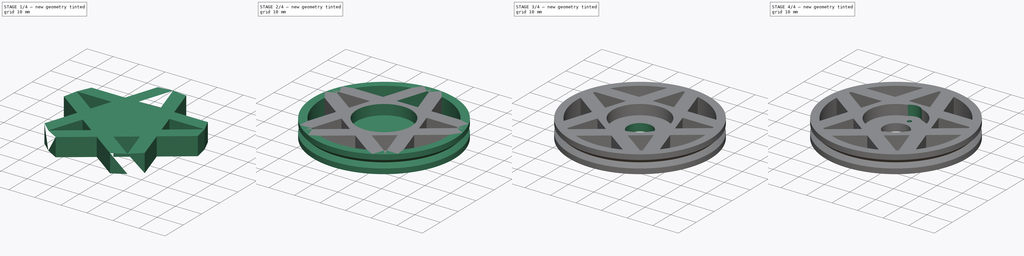
[diagram: build sequence overview — one tinted view per stage of 4, left to right]
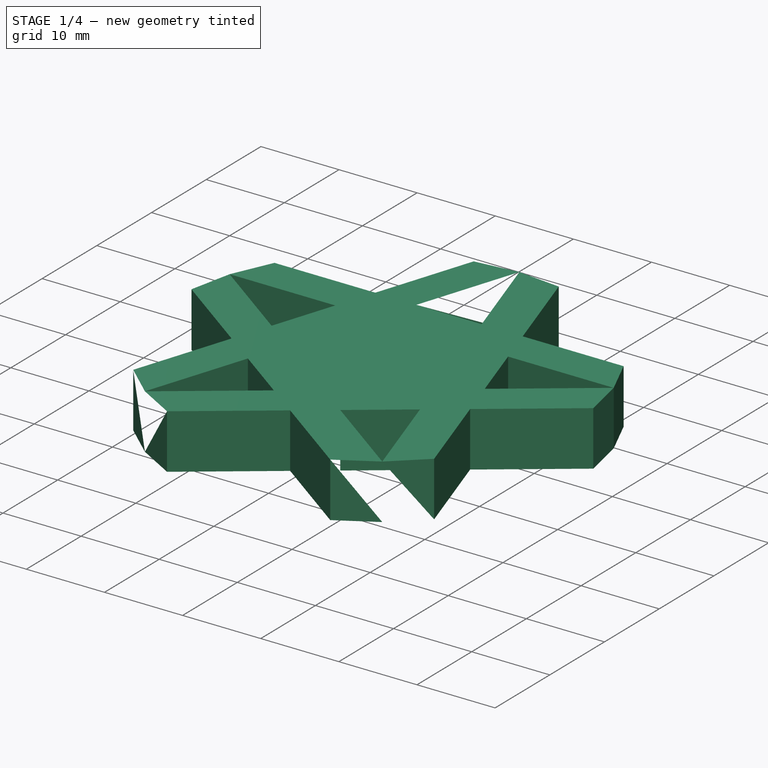
[diagram: stage 1 of 4 — iso view after this stage's code; geometry added in this stage tinted green]
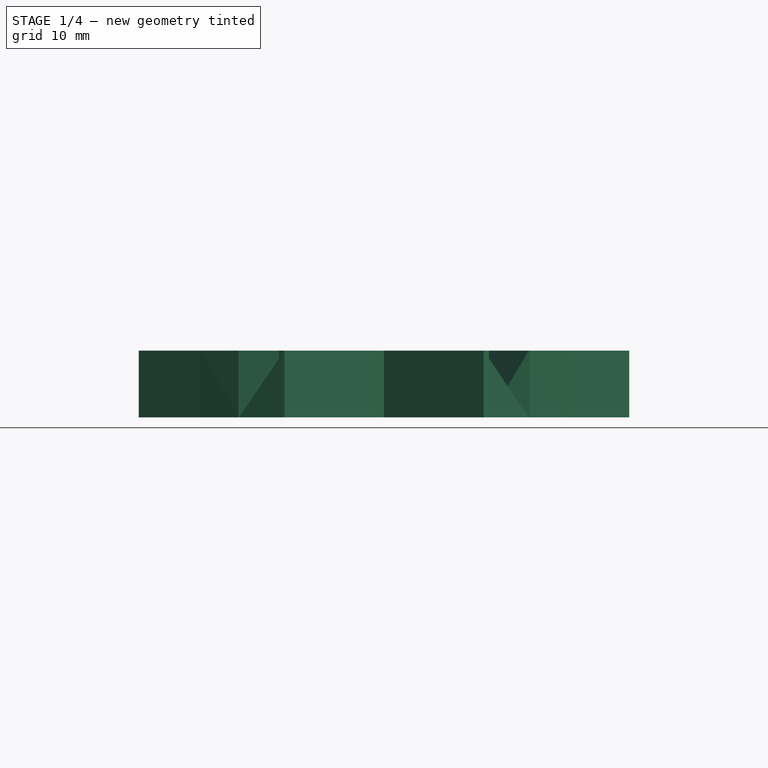
[diagram: stage 1 of 4 — front view after this stage's code; geometry added in this stage tinted green]
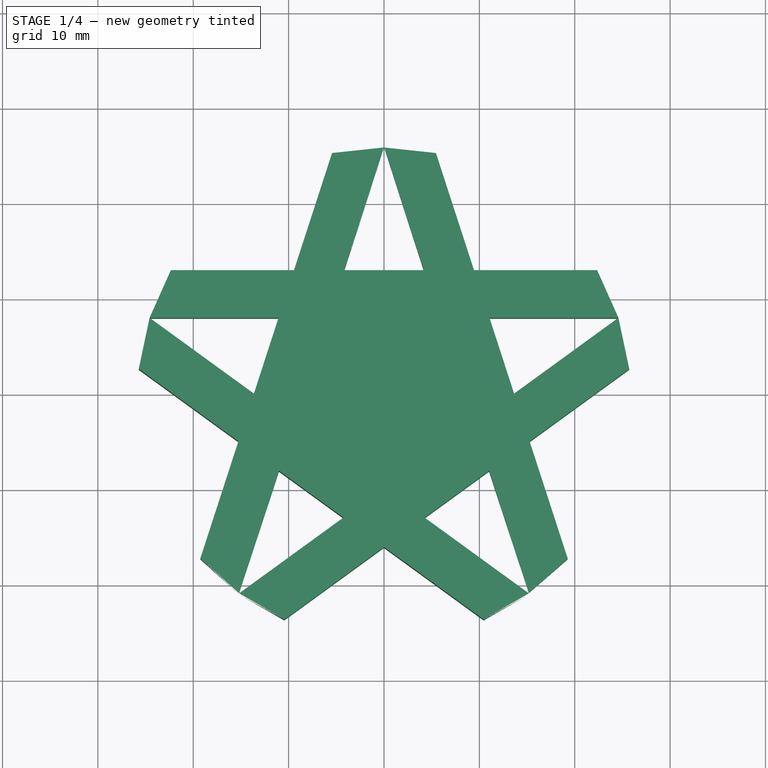
[diagram: stage 1 of 4 — top view after this stage's code; geometry added in this stage tinted green]
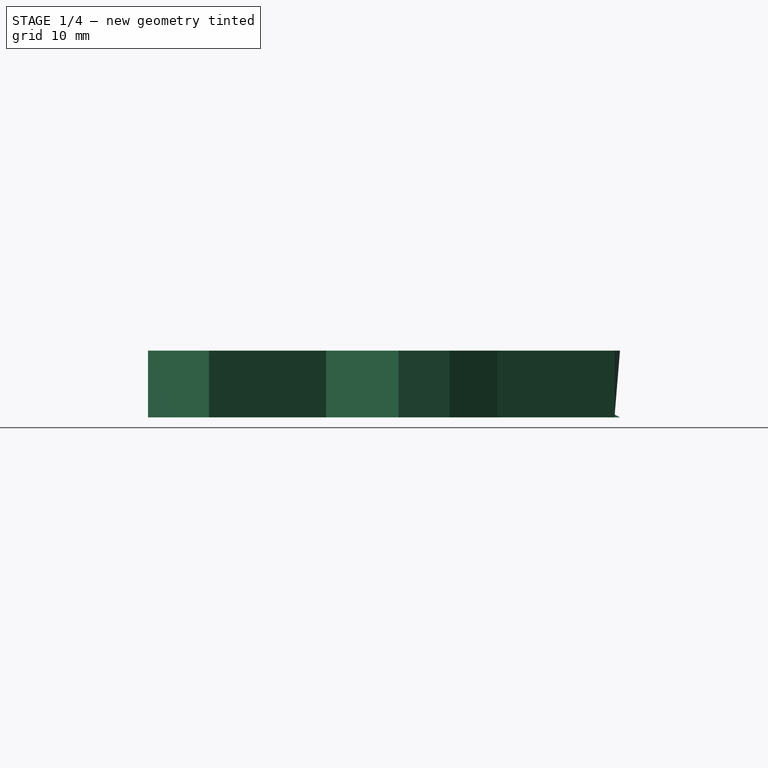
[diagram: stage 1 of 4 — right view after this stage's code; geometry added in this stage tinted green]
FCSTD DOCUMENT  (FreeCAD 0.14R3702 (Git))
Label: Renacuajo-wheel-pentacle
License: CC-BY 3.0
LicenseURL: http://creativecommons.org/licenses/by/3.0/
objects: Sketcher::SketchObject×7, Part::Feature×5, PartDesign::Pocket×4, PartDesign::Pad×2, Part::MultiFuse×2, PartDesign::PolarPattern×2, PartDesign::Revolution×1
note: 30 computed .brp shape members not serialized (recipe doc carries the construction recipe); baked Part::Feature solids carry a one-line shape summary decoded from their .brp

FEATURE [Sketcher::SketchObject] Sketch
  sketch-geometry (12):
    g0: Circle [constr] CenterX=0 CenterY=0 CenterZ=0 NormalX=0 NormalY=0 NormalZ=1 Radius=25.8483
    g1: LineSegment [constr] StartX=-9.38994 StartY=-3.05098 StartZ=0 EndX=-5.8033 EndY=7.98756 EndZ=0
    g2: LineSegment [constr] StartX=0 StartY=0 StartZ=0 EndX=0 EndY=-9.87317 EndZ=0
    g3: LineSegment [constr] StartX=0 StartY=0 StartZ=0 EndX=-9.38994 EndY=-3.05098 EndZ=0
    g4: LineSegment [constr] StartX=5.8033 StartY=7.98756 StartZ=0 EndX=9.38994 EndY=-3.05098 EndZ=0
    g5: LineSegment [constr] StartX=9.38994 StartY=-3.05098 StartZ=0 EndX=0 EndY=-9.87317 EndZ=0
    g6: LineSegment [constr] StartX=-5.8033 StartY=7.98756 StartZ=0 EndX=0 EndY=0 EndZ=0
    g7: LineSegment [constr] StartX=-24.5832 StartY=7.98756 StartZ=0 EndX=15.1932 EndY=-20.9117 EndZ=0
    g8: LineSegment StartX=-24.5832 StartY=7.98756 StartZ=0 EndX=24.5832 EndY=7.98756 EndZ=0
    g9: LineSegment StartX=-22.3485 StartY=12.9876 StartZ=0 EndX=22.3485 EndY=12.9876 EndZ=0
    g10: LineSegment StartX=-24.5832 StartY=7.98756 StartZ=0 EndX=-22.3485 EndY=12.9876 EndZ=0
    g11: LineSegment StartX=22.3485 StartY=12.9876 StartZ=0 EndX=24.5832 EndY=7.98756 EndZ=0
  constraints (32):
    c: Coincident(g0,g-1)
    c: PointOnObject(g2,g-2)
    c: Coincident(g2,g-1)
    c: Coincident(g3,g-1)
    c: Equal(g3,g2)
    c: Angle(g3,g2) = 1.25664
    c: Coincident(g4,g5)
    c: Symmetric(g1,g4,g-2)
    c: Symmetric(g4,g1,g-2)
    c: Coincident(g6,g1)
    c: Coincident(g6,g-1)
    c: Equal(g6,g3)
    c: Coincident(g1,g3)
    c: Coincident(g2,g5)
    c: Angle(g6,g3) = 1.25664
    c: PointOnObject(g7,g0)
    c: PointOnObject(g7,g0)
    c: PointOnObject(g1,g7)
    c: PointOnObject(g2,g7)
    c: Horizontal(g8)
    c: Coincident(g8,g7)
    c: PointOnObject(g8,g0)
    c: PointOnObject(g4,g8)
    c: Horizontal(g9)
    c: PointOnObject(g9,g0)
    c: PointOnObject(g9,g0)
    c: DistanceY(g9,g7) = -5
    c: Coincident(g10,g7)
    c: Coincident(g10,g9)
    c: Coincident(g11,g8)
    c: Coincident(g11,g9)
    c: Distance(g6) = 9.87317
FEATURE [PartDesign::Pad] Pad
  Length = 7
  Length2 = 100
  Midplane = true
  Sketch = -> Sketch
  Type = 0
FEATURE [Part::Feature] Pad006  label="Pad001"
  Placement = pos=(0,0,0) rot=(0,0,1;1.25664rad)
  shape: bbox 19.26 x 46.76 x 7 mm, 6 faces (baked)
FEATURE [Part::Feature] Pad006001  label="Pad002"
  Placement = pos=(0,0,0) rot=(0,0,1;2.51327rad)
  shape: bbox 40.91 x 31.63 x 7 mm, 6 faces (baked)
FEATURE [Part::Feature] Pad006001001  label="Pad003"
  Placement = pos=(0,0,0) rot=(0,0,1;3.76991rad)
  shape: bbox 40.91 x 31.63 x 7 mm, 6 faces (baked)
FEATURE [Part::Feature] Pad006001001001  label="Pad004"
  Placement = pos=(0,0,0) rot=(0,0,-1;1.25664rad)
  shape: bbox 19.26 x 46.76 x 7 mm, 6 faces (baked)
FEATURE [Part::MultiFuse] Fusion  label="star"
  Shapes = -> [Pad,Pad006,Pad006001,Pad006001001,Pad006001001001]
FEATURE [Sketcher::SketchObject] Sketch007  label="central-pentagon-sketch"
  sketch-geometry (8):
    g0: LineSegment StartX=-5.87785 StartY=8.09017 StartZ=0 EndX=5.87785 EndY=8.09017 EndZ=0
    g1: LineSegment [constr] StartX=-5.87785 StartY=8.09017 StartZ=0 EndX=0 EndY=0 EndZ=0
    g2: LineSegment [constr] StartX=-9.51057 StartY=-3.09017 StartZ=0 EndX=0 EndY=0 EndZ=0
    g3: LineSegment StartX=-5.87785 StartY=8.09017 StartZ=0 EndX=-9.51057 EndY=-3.09017 EndZ=0
    g4: LineSegment [constr] StartX=0 StartY=0 StartZ=0 EndX=0 EndY=-10 EndZ=0
    g5: LineSegment StartX=-9.51057 StartY=-3.09017 StartZ=0 EndX=0 EndY=-10 EndZ=0
    g6: LineSegment StartX=5.87785 StartY=8.09017 StartZ=0 EndX=9.51057 EndY=-3.09017 EndZ=0
    g7: LineSegment StartX=9.51057 StartY=-3.09017 StartZ=0 EndX=0 EndY=-10 EndZ=0
  constraints (20):
    c: Horizontal(g0)
    c: Symmetric(g0,g0,g-2)
    c: Coincident(g1,g-1)
    c: Coincident(g1,g0)
    c: Coincident(g-1,g2)
    c: Equal(g2,g1)
    c: Angle(g1,g2) = 1.25664
    c: Coincident(g3,g0)
    c: Coincident(g2,g3)
    c: Coincident(g4,g-1)
    c: Vertical(g4)
    c: Equal(g4,g2)
    c: Coincident(g5,g4)
    c: Coincident(g5,g2)
    c: Coincident(g6,g0)
    c: Coincident(g6,g7)
    c: Symmetric(g6,g2,g4)
    c: Coincident(g7,g4)
    c: Angle(g2,g4) = 1.25664
    c: Distance(g1) = 10
FEATURE [PartDesign::Pad] Pad006001001002  label="Central-pentagon"
  Length = 7
  Length2 = 100
  Midplane = true
  Sketch = -> Sketch007
  Type = 0
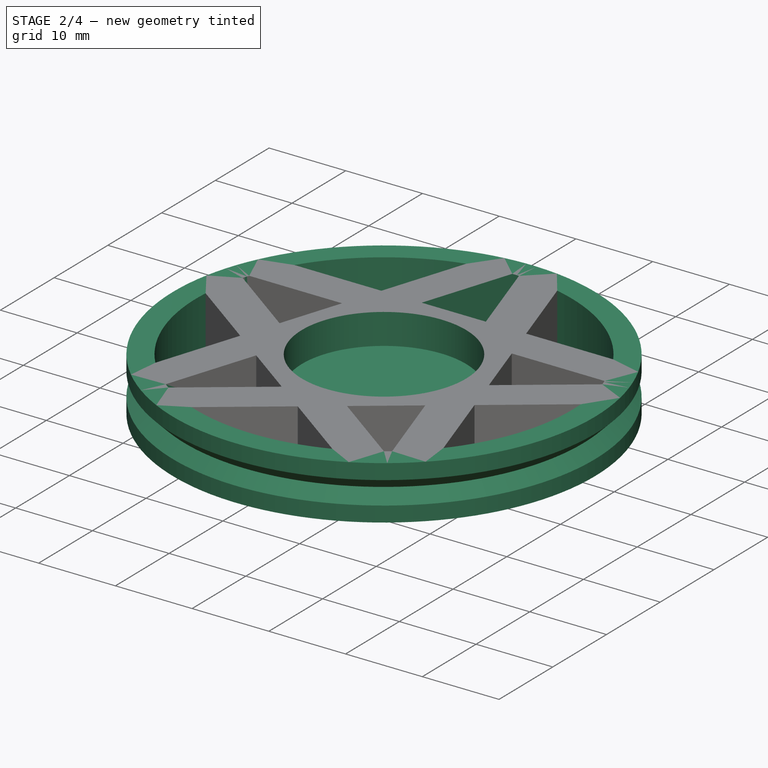
[diagram: stage 2 of 4 — iso view after this stage's code; geometry added in this stage tinted green]
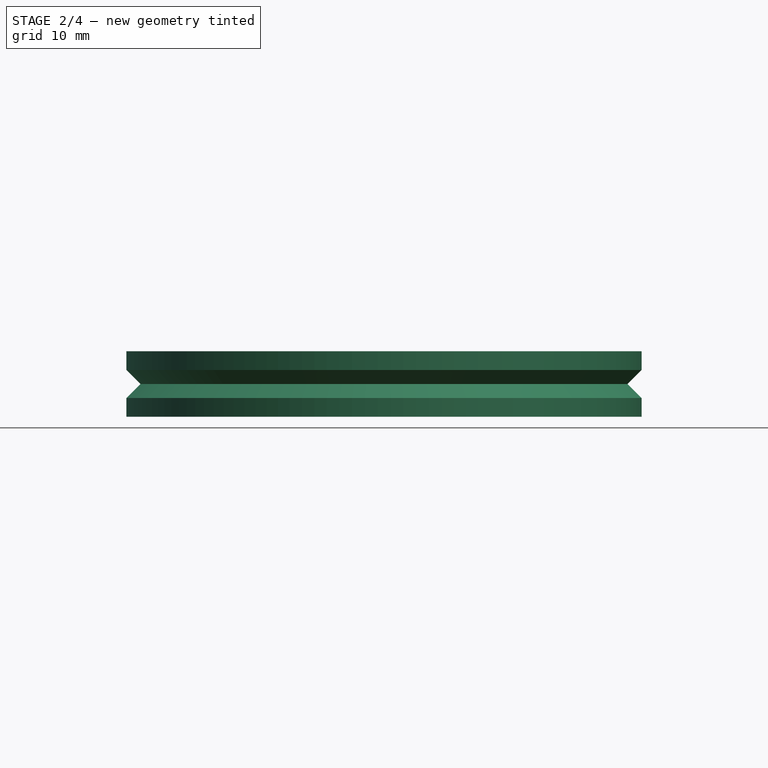
[diagram: stage 2 of 4 — front view after this stage's code; geometry added in this stage tinted green]
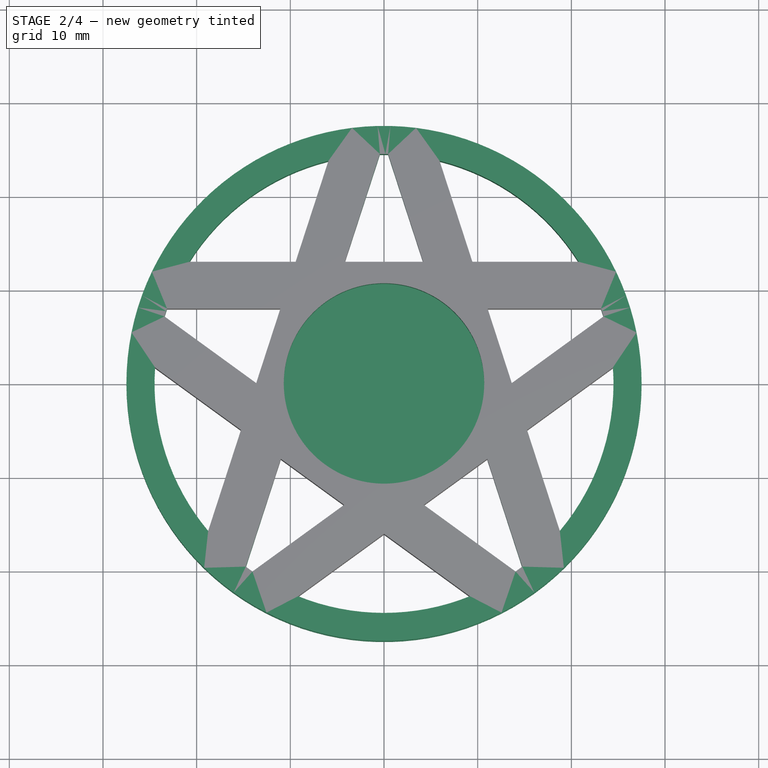
[diagram: stage 2 of 4 — top view after this stage's code; geometry added in this stage tinted green]
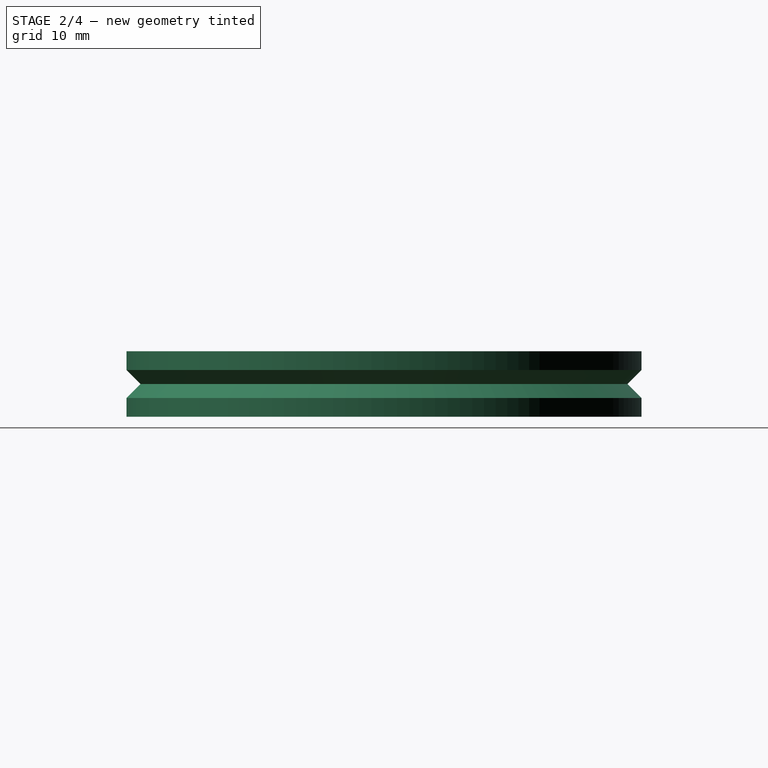
[diagram: stage 2 of 4 — right view after this stage's code; geometry added in this stage tinted green]
FEATURE [Sketcher::SketchObject] Sketch002  label="wheel-generic-sketch"
  Placement = pos=(0,0,0) rot=(1,0,0;1.5708rad)
  sketch-geometry (7):
    g0: LineSegment StartX=24.5 StartY=-3.5 StartZ=0 EndX=24.5 EndY=3.5 EndZ=0
    g1: LineSegment StartX=27.5 StartY=3.5 StartZ=0 EndX=27.5 EndY=1.5 EndZ=0
    g2: LineSegment StartX=27.5 StartY=1.5 StartZ=0 EndX=26 EndY=0 EndZ=0
    g3: LineSegment StartX=26 StartY=0 StartZ=0 EndX=27.5 EndY=-1.5 EndZ=0
    g4: LineSegment StartX=27.5 StartY=-1.5 StartZ=0 EndX=27.5 EndY=-3.5 EndZ=0
    g5: LineSegment StartX=24.5 StartY=3.5 StartZ=0 EndX=27.5 EndY=3.5 EndZ=0
    g6: LineSegment StartX=24.5 StartY=-3.5 StartZ=0 EndX=27.5 EndY=-3.5 EndZ=0
  constraints (20):
    c: Vertical(g0)
    c: Vertical(g1)
    c: Coincident(g1,g2)
    c: Coincident(g2,g3)
    c: Coincident(g3,g4)
    c: Vertical(g4)
    c: Symmetric(g0,g0,g-1)
    c: PointOnObject(g2,g-1)
    c: Symmetric(g3,g1,g-1)
    c: Angle(g2,g-1) = 2.35619
    c: DistanceY(g3,g1) = 3
    c: DistanceY(g0) = 7
    c: Coincident(g0,g5)
    c: Coincident(g6,g0)
    c: Coincident(g1,g5)
    c: Horizontal(g5)
    c: Coincident(g4,g6)
    c: Horizontal(g6)
    c: DistanceX(g5) = 3
    c: DistanceX(g-1,g1) = 27.5
FEATURE [PartDesign::Revolution] Revolution  label="rim"
  Angle = 360
  Axis = (0,0,1)
  Base = (0,0,0)
  Placement = pos=(0,0,0) rot=(1,0,0;1.5708rad)
  ReferenceAxis = -> Sketch002 [V_Axis]
  Reversed = true
  Sketch = -> Sketch002
FEATURE [Part::MultiFuse] Fusion001  label="wheel-1"
  Shapes = -> [Revolution,Fusion,Pad006001001002]
FEATURE [Sketcher::SketchObject] Sketch001  label="rounded-horn-sketch"
  Placement = pos=(0,0,3.5) rot=(0,0,1;0rad)
  Support = -> Fusion001 [Face5]
  sketch-geometry (1):
    g0: Circle CenterX=0 CenterY=0 CenterZ=0 NormalX=0 NormalY=0 NormalZ=1 Radius=10.7
  constraints (3):
    c: PointOnObject(g0,g-2)
    c: Radius(g0) = 10.7
    c: Coincident(g0,g-1)
FEATURE [PartDesign::Pocket] Pocket  label="rounded-horn"
  Length = 4
  Sketch = -> Sketch001
  Type = 0
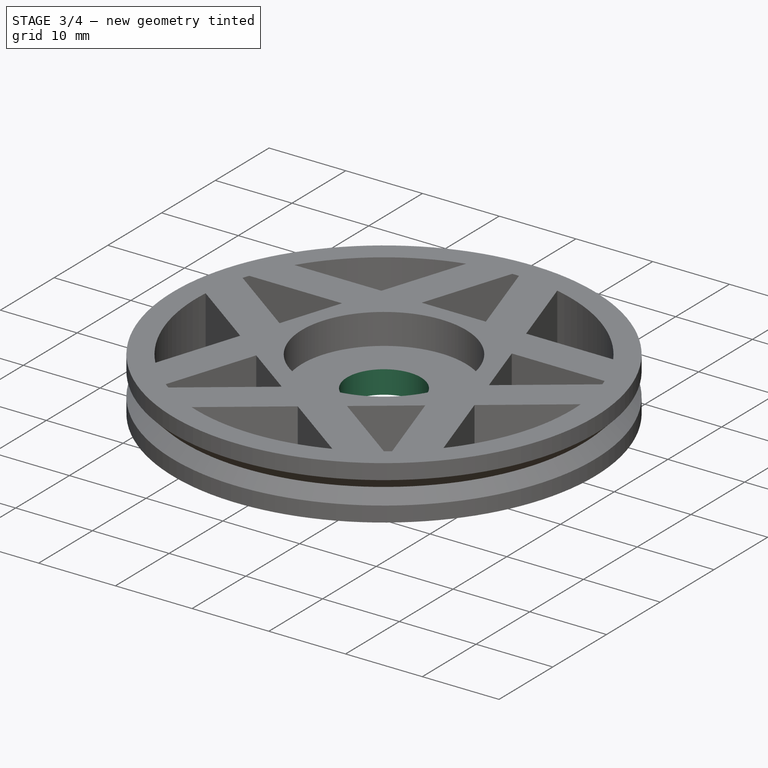
[diagram: stage 3 of 4 — iso view after this stage's code; geometry added in this stage tinted green]
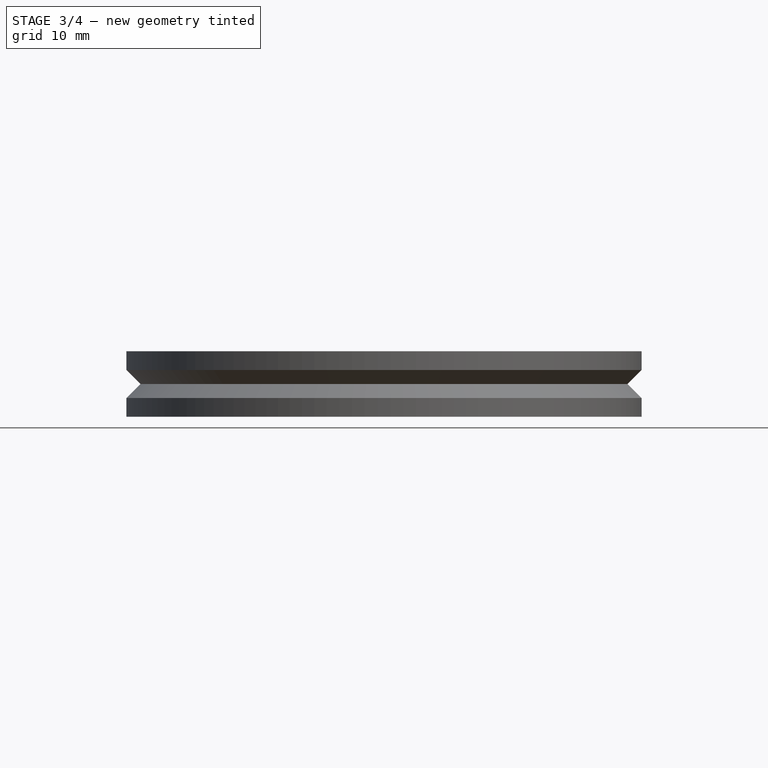
[diagram: stage 3 of 4 — front view after this stage's code; geometry added in this stage tinted green]
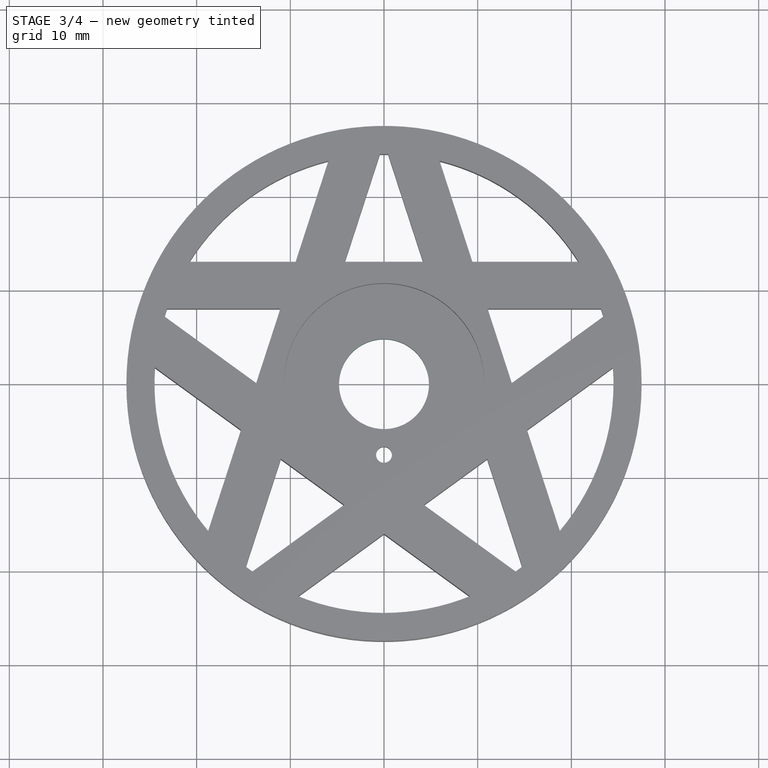
[diagram: stage 3 of 4 — top view after this stage's code; geometry added in this stage tinted green]
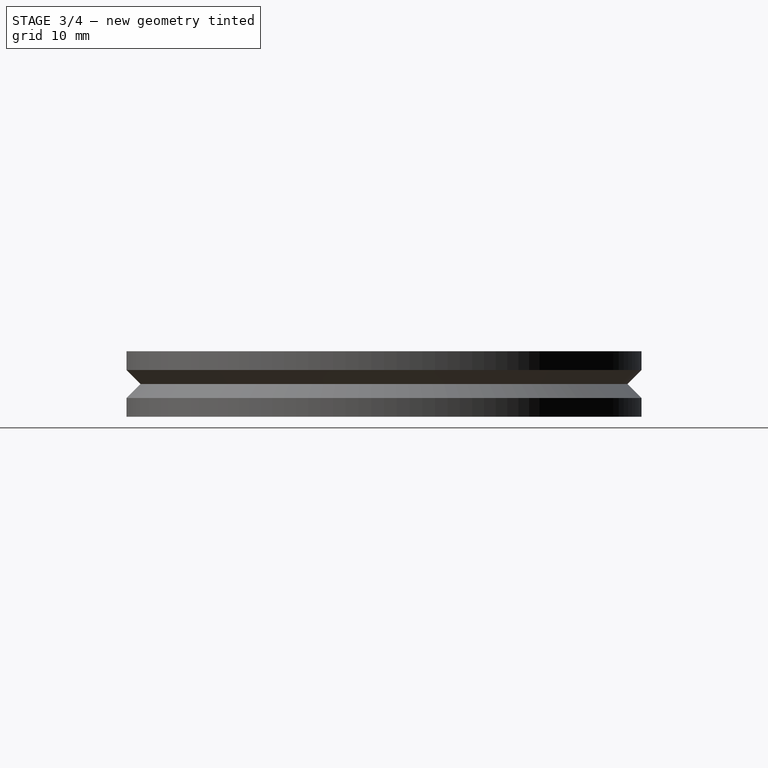
[diagram: stage 3 of 4 — right view after this stage's code; geometry added in this stage tinted green]
FEATURE [Sketcher::SketchObject] Sketch004  label="shaft-drill-sketch"
  Placement = pos=(0,0,-0.5) rot=(0,0,1;0rad)
  Support = -> Pocket [Face43]
  sketch-geometry (1):
    g0: Circle CenterX=0 CenterY=0 CenterZ=0 NormalX=0 NormalY=0 NormalZ=1 Radius=4.8
  constraints (2):
    c: Coincident(g0,g-1)
    c: Radius(g0) = 4.8
FEATURE [PartDesign::Pocket] Pocket001  label="shaft-drill"
  Length = 5
  Sketch = -> Sketch004
  Type = 1
FEATURE [Sketcher::SketchObject] Sketch005  label="horn-drill-master-sketch"
  Placement = pos=(0,0,-0.5) rot=(0,0,1;0rad)
  Support = -> Pocket001 [Face43]
  sketch-geometry (1):
    g0: Circle CenterX=0 CenterY=-7.55 CenterZ=0 NormalX=0 NormalY=0 NormalZ=1 Radius=0.85
  constraints (3):
    c: PointOnObject(g0,g-2)
    c: Radius(g0) = 0.85
    c: DistanceY(g-1,g0) = -7.55
FEATURE [PartDesign::Pocket] Pocket002  label="horn-drill-master"
  Length = 5
  Sketch = -> Sketch005
  Type = 1
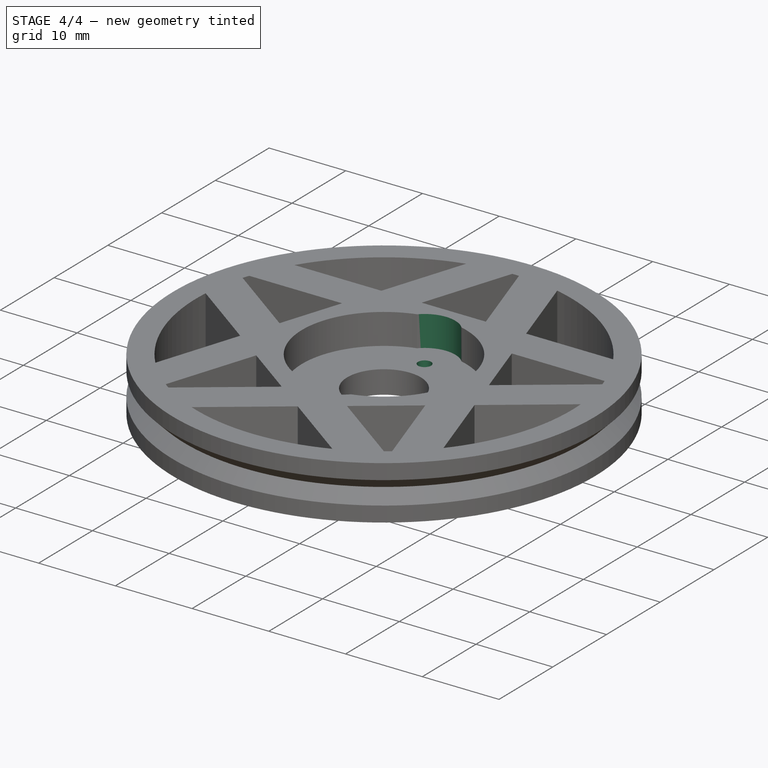
[diagram: stage 4 of 4 — iso view after this stage's code; geometry added in this stage tinted green]
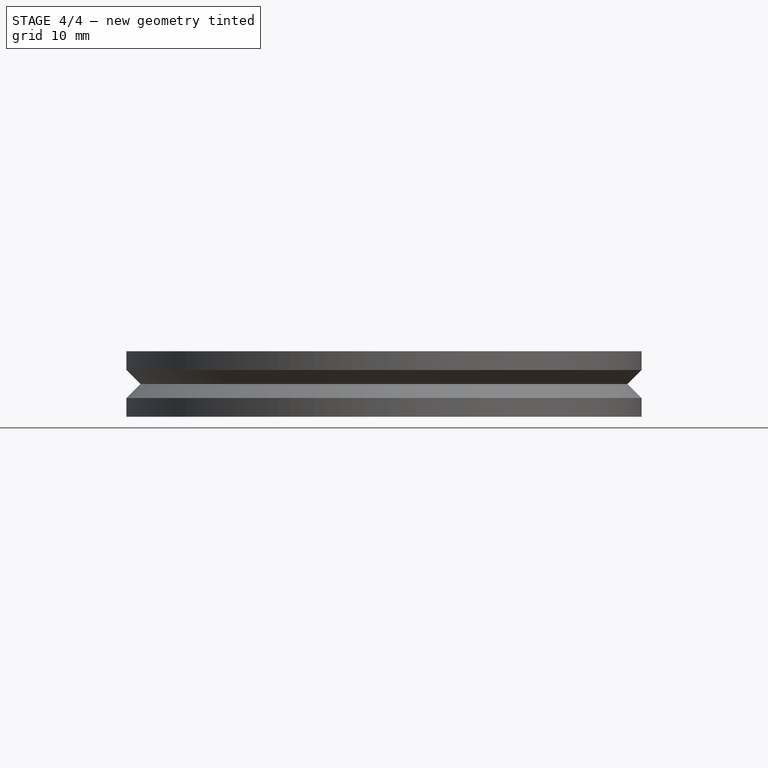
[diagram: stage 4 of 4 — front view after this stage's code; geometry added in this stage tinted green]
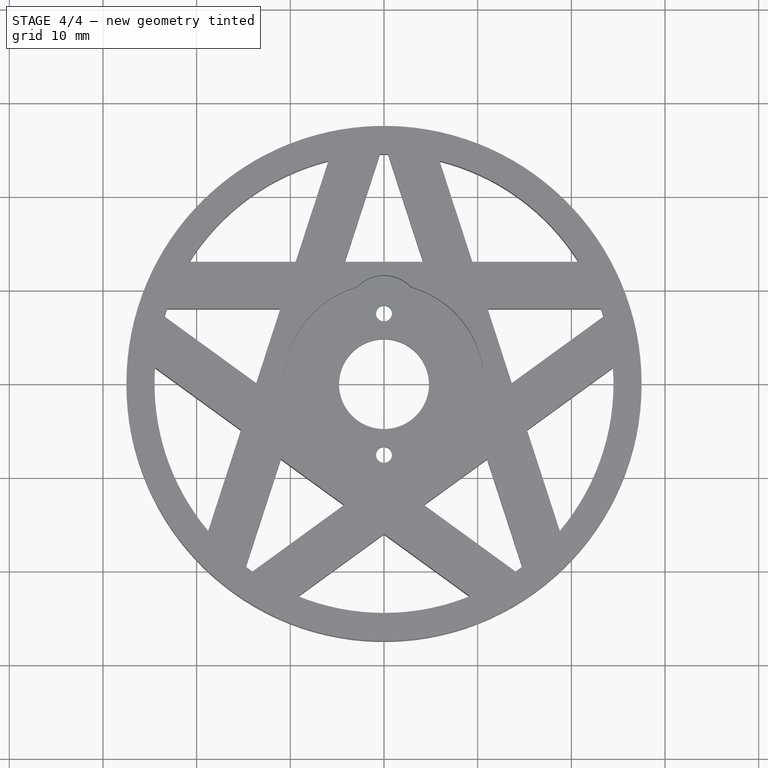
[diagram: stage 4 of 4 — top view after this stage's code; geometry added in this stage tinted green]
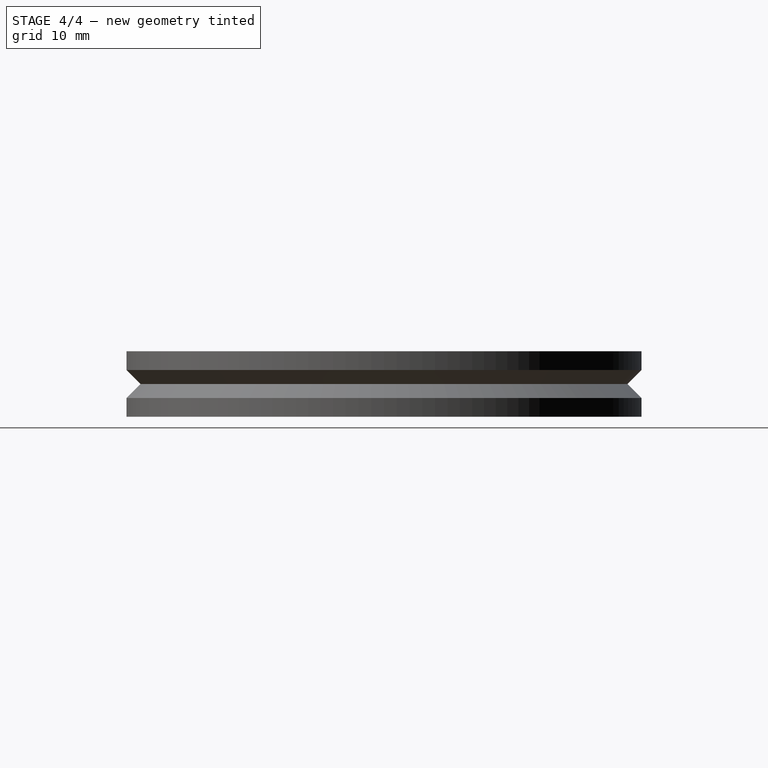
[diagram: stage 4 of 4 — right view after this stage's code; geometry added in this stage tinted green]
FEATURE [PartDesign::PolarPattern] PolarPattern  label="horn-drills"
  Angle = 360
  Axis = -> Sketch005 [N_Axis]
  Occurrences = 2
  Originals = -> [Pocket002]
FEATURE [Sketcher::SketchObject] Sketch006  label="horn-screw-room-master-sketch"
  Placement = pos=(0,0,3.5) rot=(0,0,1;0rad)
  Support = -> PolarPattern [Face2]
  sketch-geometry (1):
    g0: Circle CenterX=0 CenterY=7.55 CenterZ=0 NormalX=0 NormalY=0 NormalZ=1 Radius=4
  constraints (3):
    c: DistanceY(g-1,g0) = 7.55
    c: Radius(g0) = 4
    c: PointOnObject(g0,g-2)
FEATURE [PartDesign::Pocket] Pocket003  label="horn-screw-room-master"
  Length = 4
  Sketch = -> Sketch006
  Type = 0
FEATURE [PartDesign::PolarPattern] PolarPattern001  label="horn-screws-room"
  Angle = 360
  Axis = -> Sketch006 [N_Axis]
  Occurrences = 2
  Originals = -> [Pocket003]
FEATURE [Part::Feature] PolarPattern001001  label="Renacuajo-wheel-pentacle-final"
  shape: bbox 55 x 55 x 7 mm, 51 faces (baked)
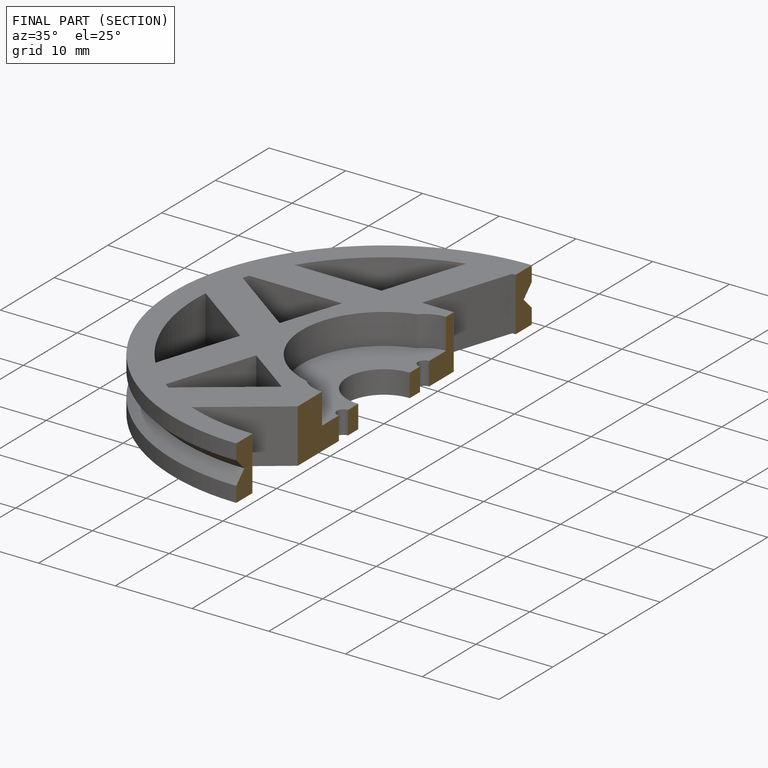
[diagram: finished part — half-section view (interior)]
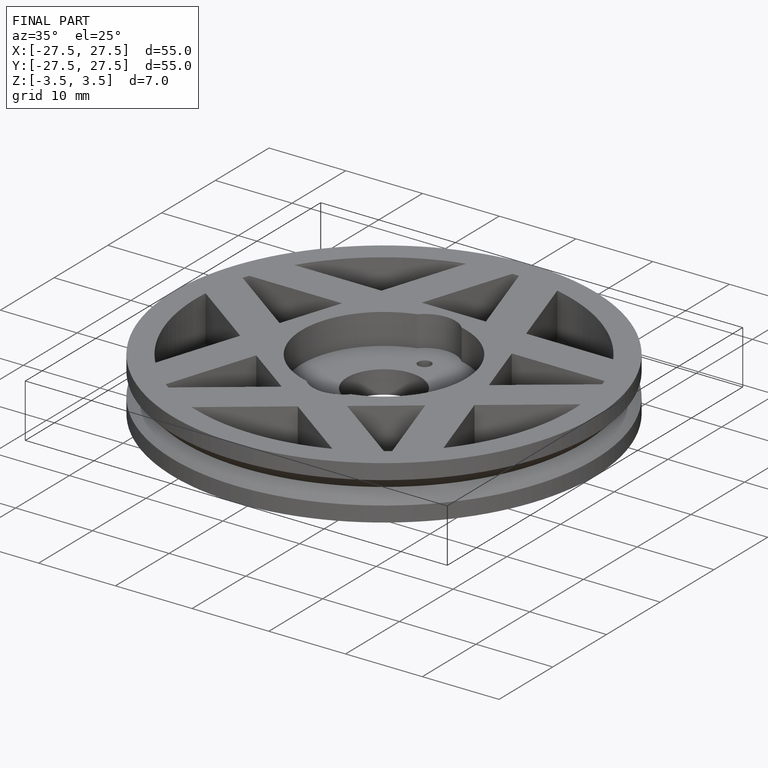
[diagram: finished part — iso view with bounding-box wireframe]
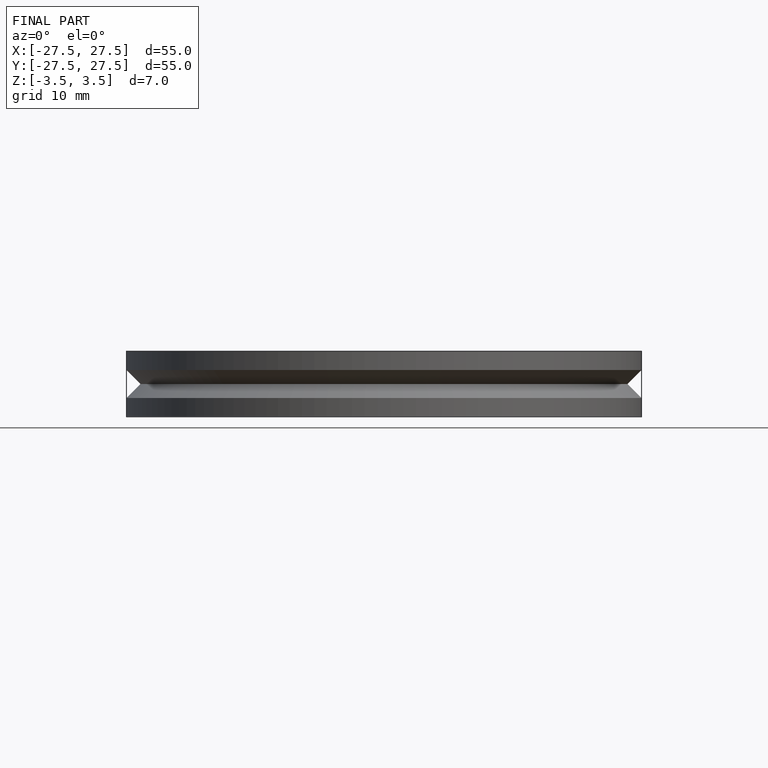
[diagram: finished part — front view with bounding-box wireframe]
